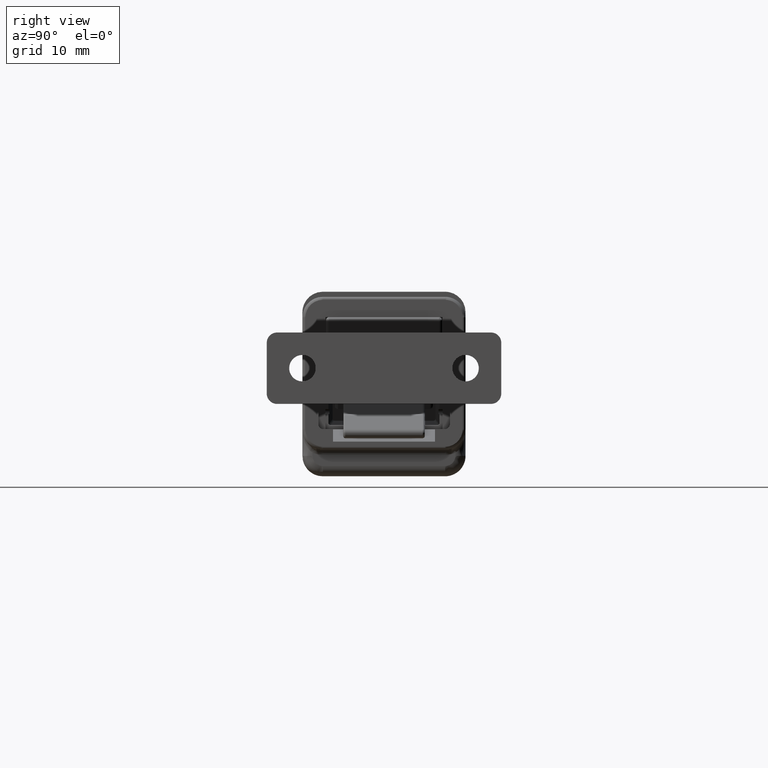
[diagram: clean part render]
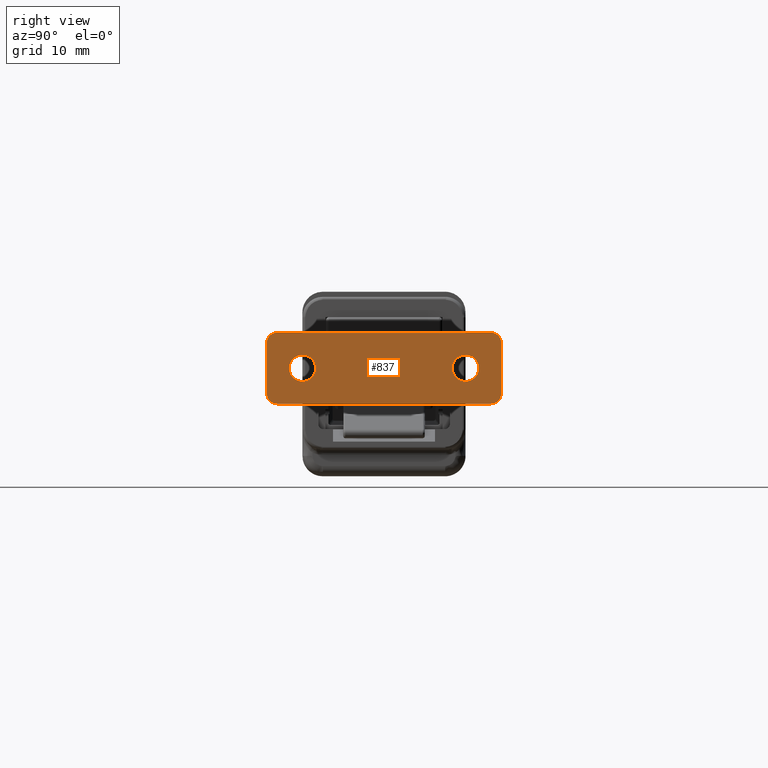
[diagram: same view with one face highlighted and labeled with its STEP entity id]
A machine part, right view. The second image highlights one B-rep face of the part: STEP entity #837.
In plain terms, the highlighted face is a freeform B-spline surface patch.
Its self-contained STEP definition (entity closure, byte-faithful):
#207=CARTESIAN_POINT('',(42.0,9.295992533852232,-0.101996824456244));
#208=VERTEX_POINT('',#207);
#214=CARTESIAN_POINT('',(42.0,8.0,1.299999999999957));
#215=VERTEX_POINT('',#214);
#216=CARTESIAN_POINT('',(42.0,9.295992533852230,-0.101996824456243));
#217=CARTESIAN_POINT('',(42.0,9.299999999999955,-0.051077139115015));
#218=CARTESIAN_POINT('',(42.0,9.299999999999955,2.939055E-015));
#219=CARTESIAN_POINT('',(42.000000000000007,9.299999999999955,1.299999999999957));
#220=CARTESIAN_POINT('',(42.0,8.0,1.299999999999957));
#228=(BOUNDED_CURVE()B_SPLINE_CURVE(2,(#216,#217,#218,#219,#220),.UNSPECIFIED.,.F.,.U.)B_SPLINE_CURVE_WITH_KNOTS((3,2,3),(0.736331300631437,0.750000000000000,1.0),.UNSPECIFIED.)CURVE()GEOMETRIC_REPRESENTATION_ITEM()RATIONAL_B_SPLINE_CURVE((0.969723356169041,0.983986122579793,1.0,0.707106781186548,1.0))REPRESENTATION_ITEM(''));
#229=EDGE_CURVE('',#208,#215,#228,.T.);
#231=CARTESIAN_POINT('',(42.0,6.704007466147771,0.101996824456249));
#232=VERTEX_POINT('',#231);
#233=CARTESIAN_POINT('',(42.0,8.0,1.299999999999957));
#234=CARTESIAN_POINT('',(42.0,6.798292360853724,1.299999999999957));
#235=CARTESIAN_POINT('',(42.0,6.704007466147771,0.101996824456249));
#243=(BOUNDED_CURVE()B_SPLINE_CURVE(2,(#233,#234,#235),.UNSPECIFIED.,.F.,.U.)B_SPLINE_CURVE_WITH_KNOTS((3,3),(0.0,0.236331300631437),.UNSPECIFIED.)CURVE()GEOMETRIC_REPRESENTATION_ITEM()RATIONAL_B_SPLINE_CURVE((1.0,0.723120658606754,0.969723356169041))REPRESENTATION_ITEM(''));
#244=EDGE_CURVE('',#215,#232,#243,.T.);
#274=CARTESIAN_POINT('',(42.0,8.0,-1.299999999999951));
#275=VERTEX_POINT('',#274);
#276=CARTESIAN_POINT('',(42.0,6.704007466147771,0.101996824456249));
#277=CARTESIAN_POINT('',(42.0,6.700000000000047,0.051077139115021));
#278=CARTESIAN_POINT('',(42.0,6.700000000000046,2.939055E-015));
#279=CARTESIAN_POINT('',(42.000000000000007,6.700000000000048,-1.299999999999951));
#280=CARTESIAN_POINT('',(42.0,8.0,-1.299999999999951));
#288=(BOUNDED_CURVE()B_SPLINE_CURVE(2,(#276,#277,#278,#279,#280),.UNSPECIFIED.,.F.,.U.)B_SPLINE_CURVE_WITH_KNOTS((3,2,3),(0.236331300631437,0.250000000000000,0.500000000000000),.UNSPECIFIED.)CURVE()GEOMETRIC_REPRESENTATION_ITEM()RATIONAL_B_SPLINE_CURVE((0.969723356169041,0.983986122579793,1.0,0.707106781186548,1.0))REPRESENTATION_ITEM(''));
#289=EDGE_CURVE('',#232,#275,#288,.T.);
#291=CARTESIAN_POINT('',(42.0,8.0,-1.299999999999951));
#292=CARTESIAN_POINT('',(42.0,9.201707639146278,-1.299999999999951));
#293=CARTESIAN_POINT('',(42.0,9.295992533852230,-0.101996824456243));
#301=(BOUNDED_CURVE()B_SPLINE_CURVE(2,(#291,#292,#293),.UNSPECIFIED.,.F.,.U.)B_SPLINE_CURVE_WITH_KNOTS((3,3),(0.500000000000000,0.736331300631437),.UNSPECIFIED.)CURVE()GEOMETRIC_REPRESENTATION_ITEM()RATIONAL_B_SPLINE_CURVE((1.0,0.723120658606754,0.969723356169041))REPRESENTATION_ITEM(''));
#302=EDGE_CURVE('',#275,#208,#301,.T.);
#511=CARTESIAN_POINT('',(42.0,-9.297575237947010,-0.079363101417732));
#512=VERTEX_POINT('',#511);
#518=CARTESIAN_POINT('',(42.0,-8.0,-1.299999999999954));
#519=VERTEX_POINT('',#518);
#520=CARTESIAN_POINT('',(42.0,-8.0,-1.299999999999954));
#521=CARTESIAN_POINT('',(42.0,-9.222917886956193,-1.299999999999954));
#522=CARTESIAN_POINT('',(41.999999999999993,-9.297575237947012,-0.079363101417732));
#530=(BOUNDED_CURVE()B_SPLINE_CURVE(2,(#520,#521,#522),.UNSPECIFIED.,.F.,.U.)B_SPLINE_CURVE_WITH_KNOTS((3,3),(0.500000000000000,0.739332962238987),.UNSPECIFIED.)CURVE()GEOMETRIC_REPRESENTATION_ITEM()RATIONAL_B_SPLINE_CURVE((1.0,0.719603993286659,0.976072041666812))REPRESENTATION_ITEM(''));
#531=EDGE_CURVE('',#519,#512,#530,.T.);
#533=CARTESIAN_POINT('',(42.0,-6.702424762052990,0.079363101417732));
#534=VERTEX_POINT('',#533);
#535=CARTESIAN_POINT('',(42.0,-6.702424762052991,0.079363101417732));
#536=CARTESIAN_POINT('',(42.0,-6.700000000000047,0.039718592299406));
#537=CARTESIAN_POINT('',(42.0,-6.700000000000046,0.0));
#538=CARTESIAN_POINT('',(42.000000000000007,-6.700000000000048,-1.299999999999954));
#539=CARTESIAN_POINT('',(42.0,-8.0,-1.299999999999954));
#547=(BOUNDED_CURVE()B_SPLINE_CURVE(2,(#535,#536,#537,#538,#539),.UNSPECIFIED.,.F.,.U.)B_SPLINE_CURVE_WITH_KNOTS((3,2,3),(0.239332962238987,0.250000000000000,0.500000000000000),.UNSPECIFIED.)CURVE()GEOMETRIC_REPRESENTATION_ITEM()RATIONAL_B_SPLINE_CURVE((0.976072041666812,0.987502787899889,1.0,0.707106781186548,1.0))REPRESENTATION_ITEM(''));
#548=EDGE_CURVE('',#534,#519,#547,.T.);
#578=CARTESIAN_POINT('',(42.0,-8.0,1.299999999999954));
#579=VERTEX_POINT('',#578);
#580=CARTESIAN_POINT('',(42.0,-8.0,1.299999999999954));
#581=CARTESIAN_POINT('',(42.000000000000007,-6.777082113043811,1.299999999999954));
#582=CARTESIAN_POINT('',(42.0,-6.702424762052991,0.079363101417732));
#590=(BOUNDED_CURVE()B_SPLINE_CURVE(2,(#580,#581,#582),.UNSPECIFIED.,.F.,.U.)B_SPLINE_CURVE_WITH_KNOTS((3,3),(0.0,0.239332962238987),.UNSPECIFIED.)CURVE()GEOMETRIC_REPRESENTATION_ITEM()RATIONAL_B_SPLINE_CURVE((1.0,0.719603993286659,0.976072041666812))REPRESENTATION_ITEM(''));
#591=EDGE_CURVE('',#579,#534,#590,.T.);
#593=CARTESIAN_POINT('',(41.999999999999993,-9.297575237947012,-0.079363101417732));
#594=CARTESIAN_POINT('',(42.0,-9.299999999999956,-0.039718592299406));
#595=CARTESIAN_POINT('',(42.0,-9.299999999999955,0.0));
#596=CARTESIAN_POINT('',(42.000000000000007,-9.299999999999955,1.299999999999954));
#597=CARTESIAN_POINT('',(42.0,-8.0,1.299999999999954));
#605=(BOUNDED_CURVE()B_SPLINE_CURVE(2,(#593,#594,#595,#596,#597),.UNSPECIFIED.,.F.,.U.)B_SPLINE_CURVE_WITH_KNOTS((3,2,3),(0.739332962238987,0.750000000000000,1.0),.UNSPECIFIED.)CURVE()GEOMETRIC_REPRESENTATION_ITEM()RATIONAL_B_SPLINE_CURVE((0.976072041666812,0.987502787899889,1.0,0.707106781186548,1.0))REPRESENTATION_ITEM(''));
#606=EDGE_CURVE('',#512,#579,#605,.T.);
#701=CARTESIAN_POINT('',(42.0,-10.500000000000000,3.500000000000000));
#702=VERTEX_POINT('',#701);
#723=CARTESIAN_POINT('',(42.0,-11.500000000000000,2.500000000000000));
#724=VERTEX_POINT('',#723);
#730=CARTESIAN_POINT('',(42.0,-11.500000000000000,2.500000000000000));
#731=CARTESIAN_POINT('',(42.000000000000007,-11.500000000000000,3.499999999999999));
#732=CARTESIAN_POINT('',(42.0,-10.500000000000000,3.500000000000000));
#740=(BOUNDED_CURVE()B_SPLINE_CURVE(2,(#730,#731,#732),.UNSPECIFIED.,.F.,.U.)CURVE()GEOMETRIC_REPRESENTATION_ITEM()QUASI_UNIFORM_CURVE()RATIONAL_B_SPLINE_CURVE((1.0,0.707106781186548,1.0))REPRESENTATION_ITEM(''));
#741=EDGE_CURVE('',#724,#702,#740,.T.);
#746=CARTESIAN_POINT('',(42.0,12.648849955421539,3.849649986432642));
#747=CARTESIAN_POINT('',(42.0,-12.648850572329611,3.849649986432642));
#748=CARTESIAN_POINT('',(42.0,12.648849955421539,-3.849650174187273));
#749=CARTESIAN_POINT('',(42.0,-12.648850572329611,-3.849650174187273));
#750=B_SPLINE_SURFACE_WITH_KNOTS('',1,1,((#746,#748),(#747,#749)),.UNSPECIFIED.,.F.,.F.,.U.,(2,2),(2,2),(0.0,25.297700527751150),(0.0,7.699300160619915),.UNSPECIFIED.);
#751=CARTESIAN_POINT('',(42.0,-10.500000000000000,-3.500000000000000));
#752=VERTEX_POINT('',#751);
#753=CARTESIAN_POINT('',(42.0,-11.500000000000000,-2.500000000000000));
#754=VERTEX_POINT('',#753);
#755=CARTESIAN_POINT('',(42.0,-10.500000000000000,-3.500000000000000));
#756=CARTESIAN_POINT('',(42.000000000000007,-11.500000000000000,-3.499999999999999));
#757=CARTESIAN_POINT('',(42.0,-11.500000000000000,-2.500000000000000));
#765=(BOUNDED_CURVE()B_SPLINE_CURVE(2,(#755,#756,#757),.UNSPECIFIED.,.F.,.U.)CURVE()GEOMETRIC_REPRESENTATION_ITEM()QUASI_UNIFORM_CURVE()RATIONAL_B_SPLINE_CURVE((1.0,0.707106781186548,1.0))REPRESENTATION_ITEM(''));
#766=EDGE_CURVE('',#752,#754,#765,.T.);
#767=ORIENTED_EDGE('',*,*,#766,.F.);
#768=CARTESIAN_POINT('',(42.0,10.500000000000000,-3.500000000000000));
#769=VERTEX_POINT('',#768);
#770=CARTESIAN_POINT('',(42.0,10.500000000000000,-3.500000000000000));
#771=CARTESIAN_POINT('',(42.0,-10.500000000000000,-3.500000000000000));
#772=QUASI_UNIFORM_CURVE('',1,(#770,#771),.UNSPECIFIED.,.F.,.U.);
#773=EDGE_CURVE('',#769,#752,#772,.T.);
#774=ORIENTED_EDGE('',*,*,#773,.F.);
#775=CARTESIAN_POINT('',(42.0,11.500000000000000,-2.500000000000000));
#776=VERTEX_POINT('',#775);
#777=CARTESIAN_POINT('',(42.0,11.500000000000000,-2.500000000000000));
#778=CARTESIAN_POINT('',(42.000000000000007,11.500000000000000,-3.499999999999999));
#779=CARTESIAN_POINT('',(42.0,10.500000000000000,-3.500000000000000));
#787=(BOUNDED_CURVE()B_SPLINE_CURVE(2,(#777,#778,#779),.UNSPECIFIED.,.F.,.U.)CURVE()GEOMETRIC_REPRESENTATION_ITEM()QUASI_UNIFORM_CURVE()RATIONAL_B_SPLINE_CURVE((1.0,0.707106781186548,1.0))REPRESENTATION_ITEM(''));
#788=EDGE_CURVE('',#776,#769,#787,.T.);
#789=ORIENTED_EDGE('',*,*,#788,.F.);
#790=CARTESIAN_POINT('',(42.0,11.500000000000000,2.500000000000000));
#791=VERTEX_POINT('',#790);
#792=CARTESIAN_POINT('',(42.0,11.500000000000000,2.500000000000000));
#793=CARTESIAN_POINT('',(42.0,11.500000000000000,-2.500000000000000));
#794=QUASI_UNIFORM_CURVE('',1,(#792,#793),.UNSPECIFIED.,.F.,.U.);
#795=EDGE_CURVE('',#791,#776,#794,.T.);
#796=ORIENTED_EDGE('',*,*,#795,.F.);
#797=CARTESIAN_POINT('',(42.0,10.500000000000000,3.500000000000000));
#798=VERTEX_POINT('',#797);
#799=CARTESIAN_POINT('',(42.0,10.500000000000000,3.500000000000000));
#800=CARTESIAN_POINT('',(42.000000000000007,11.500000000000000,3.499999999999999));
#801=CARTESIAN_POINT('',(42.0,11.500000000000000,2.500000000000000));
#809=(BOUNDED_CURVE()B_SPLINE_CURVE(2,(#799,#800,#801),.UNSPECIFIED.,.F.,.U.)CURVE()GEOMETRIC_REPRESENTATION_ITEM()QUASI_UNIFORM_CURVE()RATIONAL_B_SPLINE_CURVE((1.0,0.707106781186548,1.0))REPRESENTATION_ITEM(''));
#810=EDGE_CURVE('',#798,#791,#809,.T.);
#811=ORIENTED_EDGE('',*,*,#810,.F.);
#812=CARTESIAN_POINT('',(42.0,-10.500000000000000,3.500000000000000));
#813=CARTESIAN_POINT('',(42.0,10.500000000000000,3.500000000000000));
#814=QUASI_UNIFORM_CURVE('',1,(#812,#813),.UNSPECIFIED.,.F.,.U.);
#815=EDGE_CURVE('',#702,#798,#814,.T.);
#816=ORIENTED_EDGE('',*,*,#815,.F.);
#817=ORIENTED_EDGE('',*,*,#741,.F.);
#818=CARTESIAN_POINT('',(42.0,-11.500000000000000,-2.500000000000000));
#819=CARTESIAN_POINT('',(42.0,-11.500000000000000,2.500000000000000));
#820=QUASI_UNIFORM_CURVE('',1,(#818,#819),.UNSPECIFIED.,.F.,.U.);
#821=EDGE_CURVE('',#754,#724,#820,.T.);
#822=ORIENTED_EDGE('',*,*,#821,.F.);
#823=EDGE_LOOP('',(#767,#774,#789,#796,#811,#816,#817,#822));
#824=FACE_OUTER_BOUND('',#823,.T.);
#825=ORIENTED_EDGE('',*,*,#531,.T.);
#826=ORIENTED_EDGE('',*,*,#606,.T.);
#827=ORIENTED_EDGE('',*,*,#591,.T.);
#828=ORIENTED_EDGE('',*,*,#548,.T.);
#829=EDGE_LOOP('',(#825,#826,#827,#828));
#830=FACE_BOUND('',#829,.T.);
#831=ORIENTED_EDGE('',*,*,#302,.F.);
#832=ORIENTED_EDGE('',*,*,#289,.F.);
#833=ORIENTED_EDGE('',*,*,#244,.F.);
#834=ORIENTED_EDGE('',*,*,#229,.F.);
#835=EDGE_LOOP('',(#831,#832,#833,#834));
#836=FACE_BOUND('',#835,.T.);
#837=ADVANCED_FACE('',(#824,#830,#836),#750,.T.);